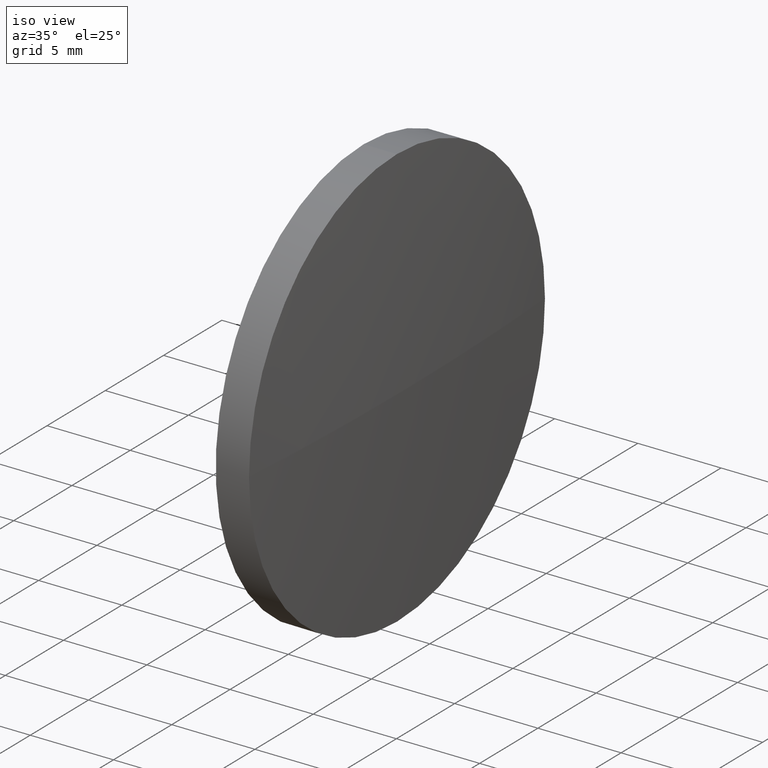
[diagram: clean part render]
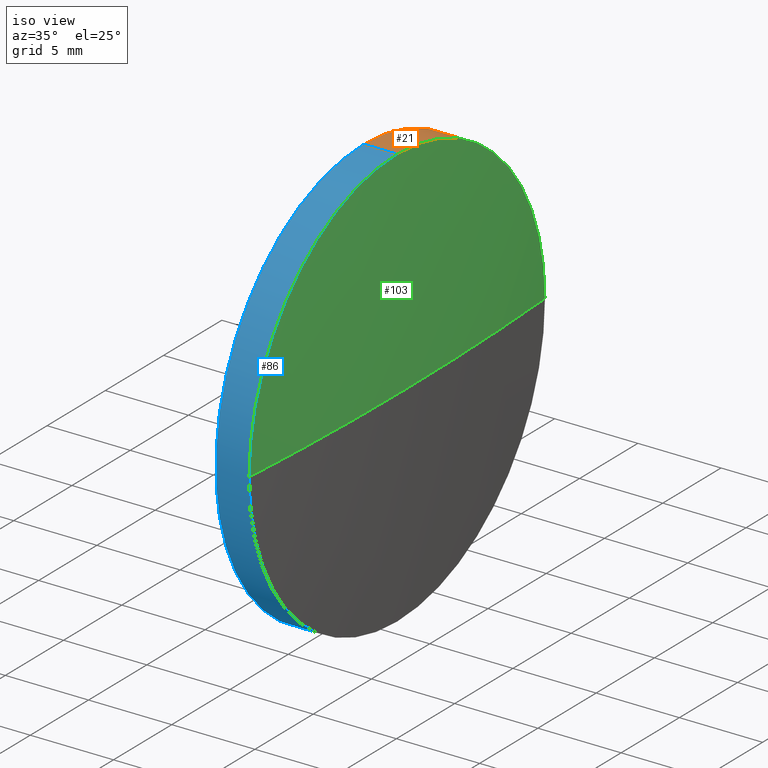
[diagram: same view with three faces highlighted in distinct colors, each labeled with its STEP entity id]
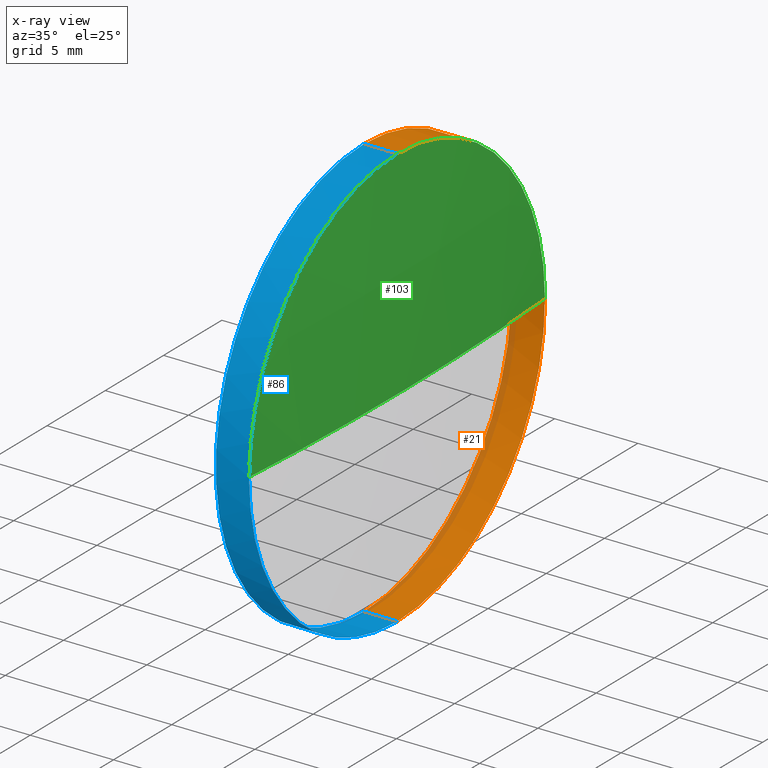
[diagram: x-ray of the same camera — body ghosted, the three highlighted faces saturated]
A machine part, iso view with three faces highlighted in distinct colors.
The next image is the same camera in x-ray (body ghosted, the three faces saturated) — at least one of them is partly hidden behind the body in this view.
Their STEP definitions:

[orange] entity #21 — the highlighted cylindrical surface (partial cylindrical patch) has radius 12.7 mm, axis along (-1, -0, -0).
#1 = CYLINDRICAL_SURFACE ( 'NONE', #28, 12.70000000000000300 ) ;
#16 = EDGE_CURVE ( 'NONE', #87, #50, #18, .T. ) ;
#18 = LINE ( 'NONE', #149, #101 ) ;
#19 = CARTESIAN_POINT ( 'NONE',  ( 115.8700467759432500, 65.23355492641219700, -12.70000000000000300 ) ) ;
#21 = ADVANCED_FACE ( 'NONE', ( #89 ), #1, .T. ) ;
#27 = VERTEX_POINT ( 'NONE', #95 ) ;
#28 = AXIS2_PLACEMENT_3D ( 'NONE', #160, #90, #94 ) ;
#32 = EDGE_CURVE ( 'NONE', #51, #143, #33, .T. ) ;
#33 = LINE ( 'NONE', #80, #178 ) ;
#50 = VERTEX_POINT ( 'NONE', #19 ) ;
#51 = VERTEX_POINT ( 'NONE', #161 ) ;
#52 = CARTESIAN_POINT ( 'NONE',  ( 115.8700467759432500, 65.23355492641219700, 12.70000000000000300 ) ) ;
#53 = CARTESIAN_POINT ( 'NONE',  ( 115.8700467759432500, 65.23355492641219700, 0.0000000000000000000 ) ) ;
#59 = ORIENTED_EDGE ( 'NONE', *, *, #156, .T. ) ;
#62 = EDGE_CURVE ( 'NONE', #27, #87, #173, .T. ) ;
#64 = ORIENTED_EDGE ( 'NONE', *, *, #16, .T. ) ;
#69 = CARTESIAN_POINT ( 'NONE',  ( 117.8700467759432500, 65.23355492641219700, -12.70000000000000300 ) ) ;
#70 = AXIS2_PLACEMENT_3D ( 'NONE', #83, #98, #137 ) ;
#71 = CIRCLE ( 'NONE', #174, 12.70000000000000300 ) ;
#72 = EDGE_LOOP ( 'NONE', ( #114, #64, #133, #111, #59 ) ) ;
#80 = CARTESIAN_POINT ( 'NONE',  ( 110.1653732284884500, 65.23355492641219700, 12.70000000000000300 ) ) ;
#82 = DIRECTION ( 'NONE',  ( -1.000000000000000000, -0.0000000000000000000, -0.0000000000000000000 ) ) ;
#83 = CARTESIAN_POINT ( 'NONE',  ( 117.8700467759432500, 65.23355492641219700, 0.0000000000000000000 ) ) ;
#84 = DIRECTION ( 'NONE',  ( 0.0000000000000000000, 0.0000000000000000000, 1.000000000000000000 ) ) ;
#87 = VERTEX_POINT ( 'NONE', #69 ) ;
#89 = FACE_OUTER_BOUND ( 'NONE', #72, .T. ) ;
#90 = DIRECTION ( 'NONE',  ( -1.000000000000000000, -0.0000000000000000000, -0.0000000000000000000 ) ) ;
#92 = DIRECTION ( 'NONE',  ( -1.000000000000000000, -0.0000000000000000000, -0.0000000000000000000 ) ) ;
#94 = DIRECTION ( 'NONE',  ( 0.0000000000000000000, 0.0000000000000000000, 1.000000000000000000 ) ) ;
#95 = CARTESIAN_POINT ( 'NONE',  ( 117.8700467759432400, 77.93355492641208600, 0.0000000000000000000 ) ) ;
#98 = DIRECTION ( 'NONE',  ( -1.000000000000000000, -0.0000000000000000000, -0.0000000000000000000 ) ) ;
#101 = VECTOR ( 'NONE', #92, 1000.000000000000000 ) ;
#108 = DIRECTION ( 'NONE',  ( -1.000000000000000000, -0.0000000000000000000, -0.0000000000000000000 ) ) ;
#111 = ORIENTED_EDGE ( 'NONE', *, *, #32, .F. ) ;
#114 = ORIENTED_EDGE ( 'NONE', *, *, #62, .T. ) ;
#119 = AXIS2_PLACEMENT_3D ( 'NONE', #53, #128, #141 ) ;
#128 = DIRECTION ( 'NONE',  ( -1.000000000000000000, -0.0000000000000000000, -0.0000000000000000000 ) ) ;
#133 = ORIENTED_EDGE ( 'NONE', *, *, #144, .F. ) ;
#137 = DIRECTION ( 'NONE',  ( 0.0000000000000000000, 0.0000000000000000000, 1.000000000000000000 ) ) ;
#138 = CIRCLE ( 'NONE', #119, 12.70000000000000300 ) ;
#141 = DIRECTION ( 'NONE',  ( 0.0000000000000000000, 0.0000000000000000000, 1.000000000000000000 ) ) ;
#143 = VERTEX_POINT ( 'NONE', #52 ) ;
#144 = EDGE_CURVE ( 'NONE', #143, #50, #138, .T. ) ;
#149 = CARTESIAN_POINT ( 'NONE',  ( 110.1653732284884500, 65.23355492641219700, -12.70000000000000300 ) ) ;
#150 = CARTESIAN_POINT ( 'NONE',  ( 117.8700467759432500, 65.23355492641219700, 0.0000000000000000000 ) ) ;
#156 = EDGE_CURVE ( 'NONE', #51, #27, #71, .T. ) ;
#160 = CARTESIAN_POINT ( 'NONE',  ( 110.1653732284884500, 65.23355492641219700, 0.0000000000000000000 ) ) ;
#161 = CARTESIAN_POINT ( 'NONE',  ( 117.8700467759432500, 65.23355492641219700, 12.70000000000000300 ) ) ;
#173 = CIRCLE ( 'NONE', #70, 12.70000000000000300 ) ;
#174 = AXIS2_PLACEMENT_3D ( 'NONE', #150, #82, #84 ) ;
#178 = VECTOR ( 'NONE', #108, 1000.000000000000000 ) ;

[blue] entity #86 — the highlighted cylindrical surface (partial cylindrical patch) has radius 12.7 mm, axis along (-1, -0, -0).
#3 = CARTESIAN_POINT ( 'NONE',  ( 117.8700467759432500, 65.23355492641219700, 0.0000000000000000000 ) ) ;
#7 = DIRECTION ( 'NONE',  ( 0.0000000000000000000, 0.0000000000000000000, 1.000000000000000000 ) ) ;
#11 = DIRECTION ( 'NONE',  ( 0.0000000000000000000, 0.0000000000000000000, 1.000000000000000000 ) ) ;
#13 = DIRECTION ( 'NONE',  ( -1.000000000000000000, -0.0000000000000000000, -0.0000000000000000000 ) ) ;
#16 = EDGE_CURVE ( 'NONE', #87, #50, #18, .T. ) ;
#18 = LINE ( 'NONE', #149, #101 ) ;
#19 = CARTESIAN_POINT ( 'NONE',  ( 115.8700467759432500, 65.23355492641219700, -12.70000000000000300 ) ) ;
#23 = DIRECTION ( 'NONE',  ( -1.000000000000000000, -0.0000000000000000000, -0.0000000000000000000 ) ) ;
#32 = EDGE_CURVE ( 'NONE', #51, #143, #33, .T. ) ;
#33 = LINE ( 'NONE', #80, #178 ) ;
#36 = AXIS2_PLACEMENT_3D ( 'NONE', #124, #23, #11 ) ;
#37 = EDGE_LOOP ( 'NONE', ( #153, #96, #81, #186, #74 ) ) ;
#40 = DIRECTION ( 'NONE',  ( 0.0000000000000000000, 0.0000000000000000000, 1.000000000000000000 ) ) ;
#43 = EDGE_CURVE ( 'NONE', #158, #51, #45, .T. ) ;
#45 = CIRCLE ( 'NONE', #58, 12.70000000000000300 ) ;
#46 = EDGE_CURVE ( 'NONE', #87, #158, #182, .T. ) ;
#50 = VERTEX_POINT ( 'NONE', #19 ) ;
#51 = VERTEX_POINT ( 'NONE', #161 ) ;
#52 = CARTESIAN_POINT ( 'NONE',  ( 115.8700467759432500, 65.23355492641219700, 12.70000000000000300 ) ) ;
#58 = AXIS2_PLACEMENT_3D ( 'NONE', #123, #78, #7 ) ;
#61 = AXIS2_PLACEMENT_3D ( 'NONE', #3, #139, #176 ) ;
#69 = CARTESIAN_POINT ( 'NONE',  ( 117.8700467759432500, 65.23355492641219700, -12.70000000000000300 ) ) ;
#73 = FACE_OUTER_BOUND ( 'NONE', #37, .T. ) ;
#74 = ORIENTED_EDGE ( 'NONE', *, *, #125, .F. ) ;
#78 = DIRECTION ( 'NONE',  ( -1.000000000000000000, -0.0000000000000000000, -0.0000000000000000000 ) ) ;
#79 = CYLINDRICAL_SURFACE ( 'NONE', #102, 12.70000000000000300 ) ;
#80 = CARTESIAN_POINT ( 'NONE',  ( 110.1653732284884500, 65.23355492641219700, 12.70000000000000300 ) ) ;
#81 = ORIENTED_EDGE ( 'NONE', *, *, #43, .T. ) ;
#86 = ADVANCED_FACE ( 'NONE', ( #73 ), #79, .T. ) ;
#87 = VERTEX_POINT ( 'NONE', #69 ) ;
#92 = DIRECTION ( 'NONE',  ( -1.000000000000000000, -0.0000000000000000000, -0.0000000000000000000 ) ) ;
#96 = ORIENTED_EDGE ( 'NONE', *, *, #46, .T. ) ;
#101 = VECTOR ( 'NONE', #92, 1000.000000000000000 ) ;
#102 = AXIS2_PLACEMENT_3D ( 'NONE', #151, #13, #40 ) ;
#108 = DIRECTION ( 'NONE',  ( -1.000000000000000000, -0.0000000000000000000, -0.0000000000000000000 ) ) ;
#115 = CARTESIAN_POINT ( 'NONE',  ( 117.8700467759432400, 52.53355492641230700, -1.555301434917125400E-015 ) ) ;
#120 = CIRCLE ( 'NONE', #36, 12.70000000000000300 ) ;
#123 = CARTESIAN_POINT ( 'NONE',  ( 117.8700467759432500, 65.23355492641219700, 0.0000000000000000000 ) ) ;
#124 = CARTESIAN_POINT ( 'NONE',  ( 115.8700467759432500, 65.23355492641219700, 0.0000000000000000000 ) ) ;
#125 = EDGE_CURVE ( 'NONE', #50, #143, #120, .T. ) ;
#139 = DIRECTION ( 'NONE',  ( -1.000000000000000000, -0.0000000000000000000, -0.0000000000000000000 ) ) ;
#143 = VERTEX_POINT ( 'NONE', #52 ) ;
#149 = CARTESIAN_POINT ( 'NONE',  ( 110.1653732284884500, 65.23355492641219700, -12.70000000000000300 ) ) ;
#151 = CARTESIAN_POINT ( 'NONE',  ( 110.1653732284884500, 65.23355492641219700, 0.0000000000000000000 ) ) ;
#153 = ORIENTED_EDGE ( 'NONE', *, *, #16, .F. ) ;
#158 = VERTEX_POINT ( 'NONE', #115 ) ;
#161 = CARTESIAN_POINT ( 'NONE',  ( 117.8700467759432500, 65.23355492641219700, 12.70000000000000300 ) ) ;
#176 = DIRECTION ( 'NONE',  ( 0.0000000000000000000, 0.0000000000000000000, 1.000000000000000000 ) ) ;
#178 = VECTOR ( 'NONE', #108, 1000.000000000000000 ) ;
#182 = CIRCLE ( 'NONE', #61, 12.70000000000000300 ) ;
#186 = ORIENTED_EDGE ( 'NONE', *, *, #32, .T. ) ;

[green] entity #103 — the highlighted spherical surface has radius 183.504 mm.
#5 = CIRCLE ( 'NONE', #88, 183.5040909090919300 ) ;
#7 = DIRECTION ( 'NONE',  ( 0.0000000000000000000, 0.0000000000000000000, 1.000000000000000000 ) ) ;
#9 = CARTESIAN_POINT ( 'NONE',  ( -65.19404413314869400, 65.23355492641219700, 0.0000000000000000000 ) ) ;
#12 = DIRECTION ( 'NONE',  ( -0.0000000000000000000, 0.0000000000000000000, -1.000000000000000000 ) ) ;
#27 = VERTEX_POINT ( 'NONE', #95 ) ;
#30 = VERTEX_POINT ( 'NONE', #122 ) ;
#31 = ORIENTED_EDGE ( 'NONE', *, *, #43, .F. ) ;
#41 = DIRECTION ( 'NONE',  ( -0.0000000000000000000, 0.0000000000000000000, 1.000000000000000000 ) ) ;
#43 = EDGE_CURVE ( 'NONE', #158, #51, #45, .T. ) ;
#45 = CIRCLE ( 'NONE', #58, 12.70000000000000300 ) ;
#48 = SPHERICAL_SURFACE ( 'NONE', #49, 183.5040909090919300 ) ;
#49 = AXIS2_PLACEMENT_3D ( 'NONE', #100, #12, #97 ) ;
#51 = VERTEX_POINT ( 'NONE', #161 ) ;
#55 = CIRCLE ( 'NONE', #77, 183.5040909090919300 ) ;
#58 = AXIS2_PLACEMENT_3D ( 'NONE', #123, #78, #7 ) ;
#66 = DIRECTION ( 'NONE',  ( 0.0000000000000000000, 1.224646799147353200E-016, -1.000000000000000000 ) ) ;
#67 = CARTESIAN_POINT ( 'NONE',  ( -65.19404413314869400, 65.23355492641219700, 0.0000000000000000000 ) ) ;
#68 = ORIENTED_EDGE ( 'NONE', *, *, #147, .T. ) ;
#71 = CIRCLE ( 'NONE', #174, 12.70000000000000300 ) ;
#76 = ORIENTED_EDGE ( 'NONE', *, *, #166, .F. ) ;
#77 = AXIS2_PLACEMENT_3D ( 'NONE', #67, #41, #179 ) ;
#78 = DIRECTION ( 'NONE',  ( -1.000000000000000000, -0.0000000000000000000, -0.0000000000000000000 ) ) ;
#82 = DIRECTION ( 'NONE',  ( -1.000000000000000000, -0.0000000000000000000, -0.0000000000000000000 ) ) ;
#84 = DIRECTION ( 'NONE',  ( 0.0000000000000000000, 0.0000000000000000000, 1.000000000000000000 ) ) ;
#88 = AXIS2_PLACEMENT_3D ( 'NONE', #9, #66, #112 ) ;
#95 = CARTESIAN_POINT ( 'NONE',  ( 117.8700467759432400, 77.93355492641208600, 0.0000000000000000000 ) ) ;
#97 = DIRECTION ( 'NONE',  ( 0.0000000000000000000, 1.000000000000000000, 0.0000000000000000000 ) ) ;
#100 = CARTESIAN_POINT ( 'NONE',  ( -65.19404413314869400, 65.23355492641219700, 0.0000000000000000000 ) ) ;
#103 = ADVANCED_FACE ( 'NONE', ( #104 ), #48, .T. ) ;
#104 = FACE_OUTER_BOUND ( 'NONE', #146, .T. ) ;
#112 = DIRECTION ( 'NONE',  ( 0.0000000000000000000, 1.000000000000000000, 1.224646799147353200E-016 ) ) ;
#115 = CARTESIAN_POINT ( 'NONE',  ( 117.8700467759432400, 52.53355492641230700, -1.555301434917125400E-015 ) ) ;
#122 = CARTESIAN_POINT ( 'NONE',  ( 118.3100467759432300, 65.23355492641221100, 0.0000000000000000000 ) ) ;
#123 = CARTESIAN_POINT ( 'NONE',  ( 117.8700467759432500, 65.23355492641219700, 0.0000000000000000000 ) ) ;
#146 = EDGE_LOOP ( 'NONE', ( #76, #68, #169, #31 ) ) ;
#147 = EDGE_CURVE ( 'NONE', #30, #27, #55, .T. ) ;
#150 = CARTESIAN_POINT ( 'NONE',  ( 117.8700467759432500, 65.23355492641219700, 0.0000000000000000000 ) ) ;
#156 = EDGE_CURVE ( 'NONE', #51, #27, #71, .T. ) ;
#158 = VERTEX_POINT ( 'NONE', #115 ) ;
#161 = CARTESIAN_POINT ( 'NONE',  ( 117.8700467759432500, 65.23355492641219700, 12.70000000000000300 ) ) ;
#166 = EDGE_CURVE ( 'NONE', #30, #158, #5, .T. ) ;
#169 = ORIENTED_EDGE ( 'NONE', *, *, #156, .F. ) ;
#174 = AXIS2_PLACEMENT_3D ( 'NONE', #150, #82, #84 ) ;
#179 = DIRECTION ( 'NONE',  ( 1.000000000000000000, 0.0000000000000000000, 0.0000000000000000000 ) ) ;